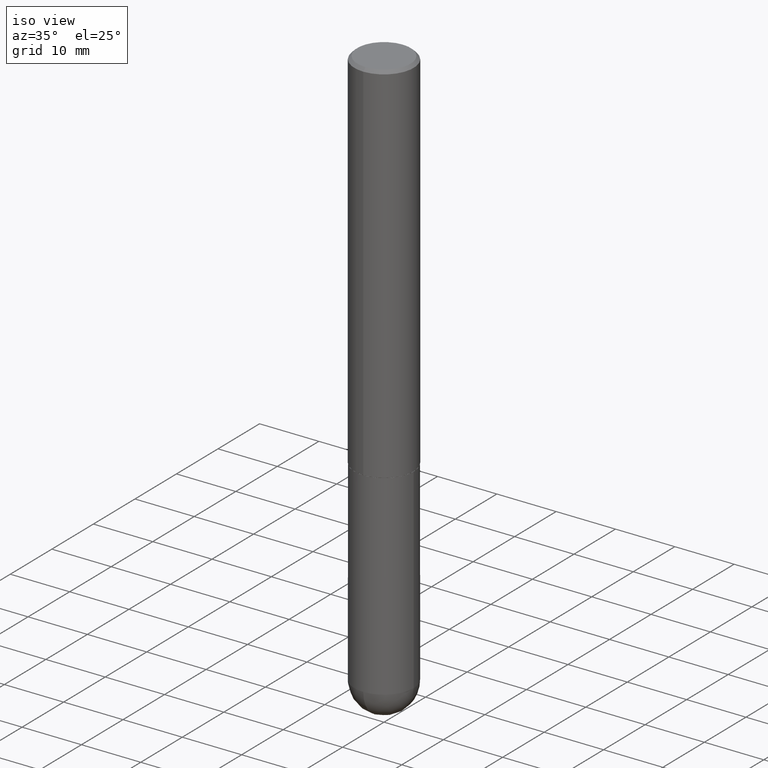
[diagram: clean part render]
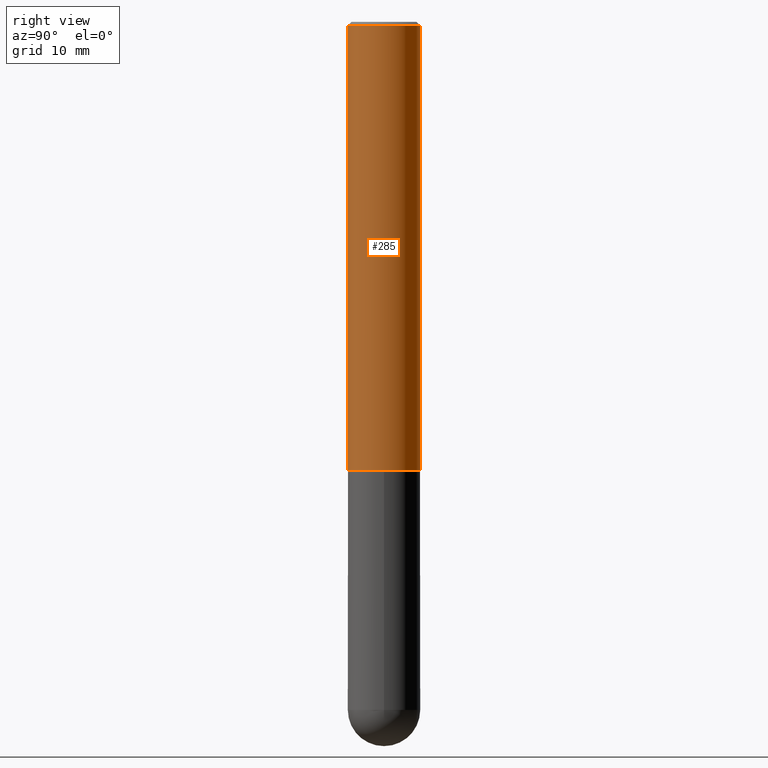
[diagram: tour spotlight — one face highlighted and labeled with its STEP entity id]
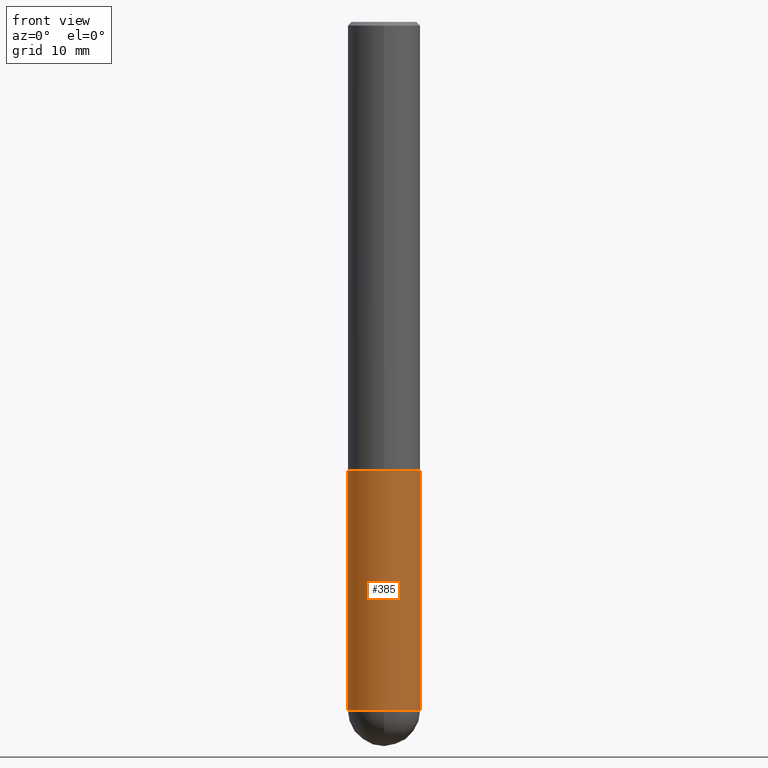
[diagram: tour spotlight — one face highlighted and labeled with its STEP entity id]
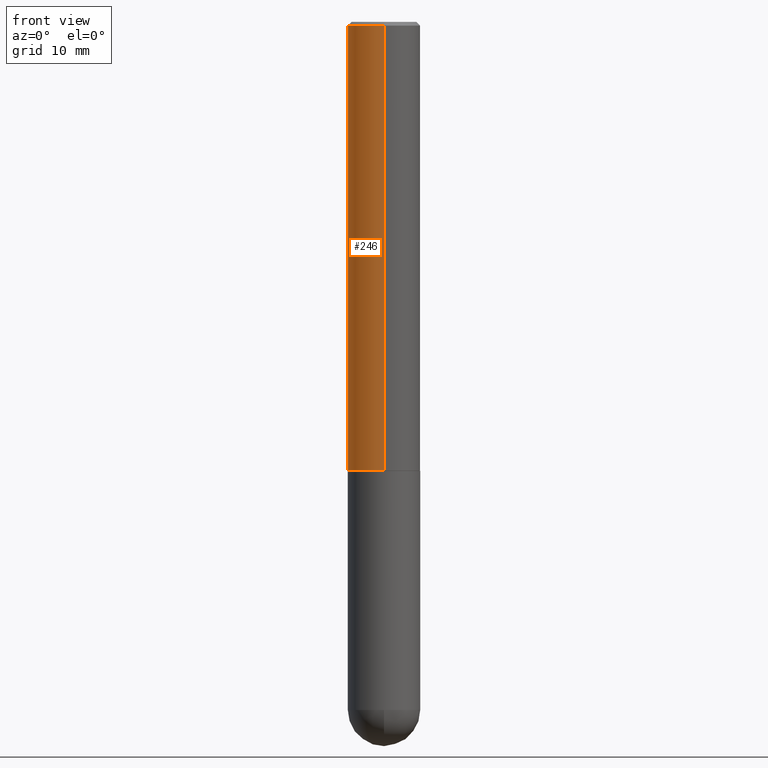
[diagram: tour spotlight — one face highlighted and labeled with its STEP entity id]
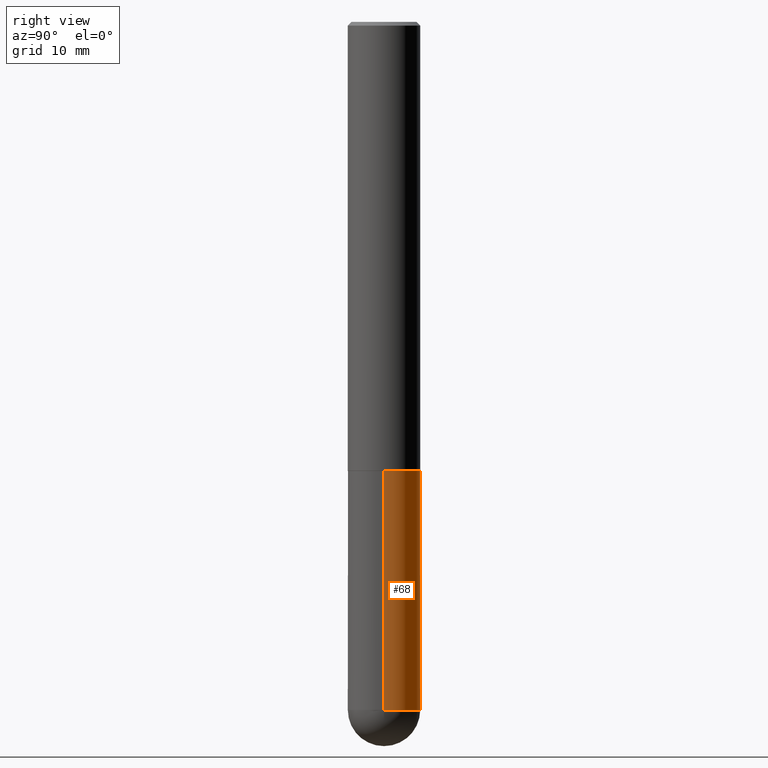
[diagram: tour spotlight — one face highlighted and labeled with its STEP entity id]
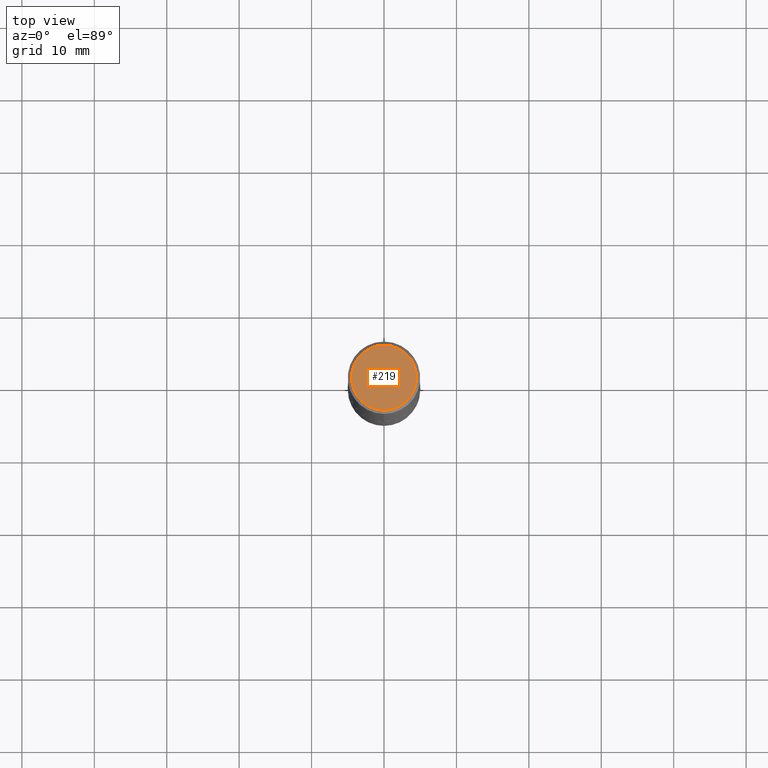
[diagram: tour spotlight — one face highlighted and labeled with its STEP entity id]
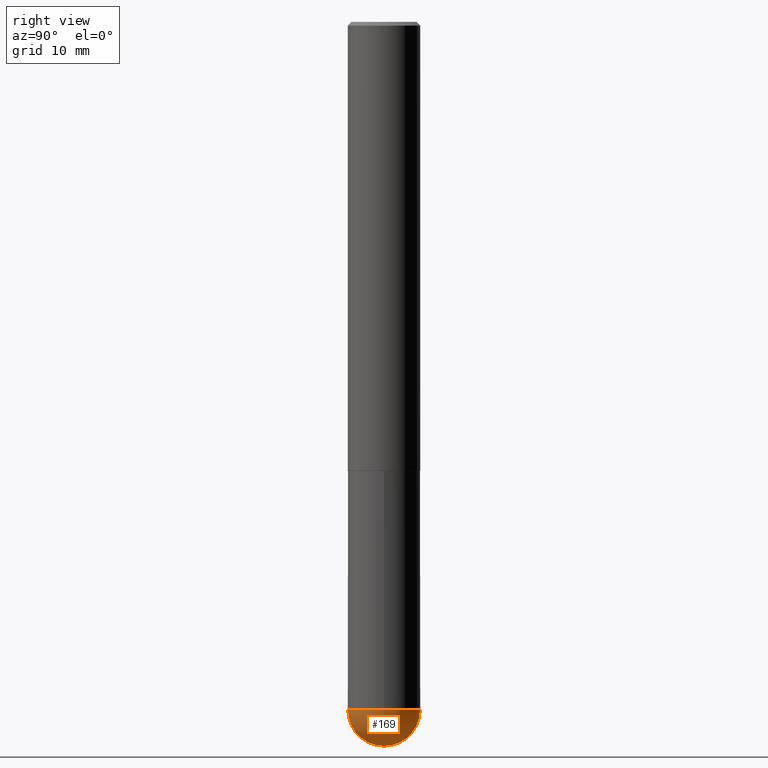
[diagram: tour spotlight — one face highlighted and labeled with its STEP entity id]
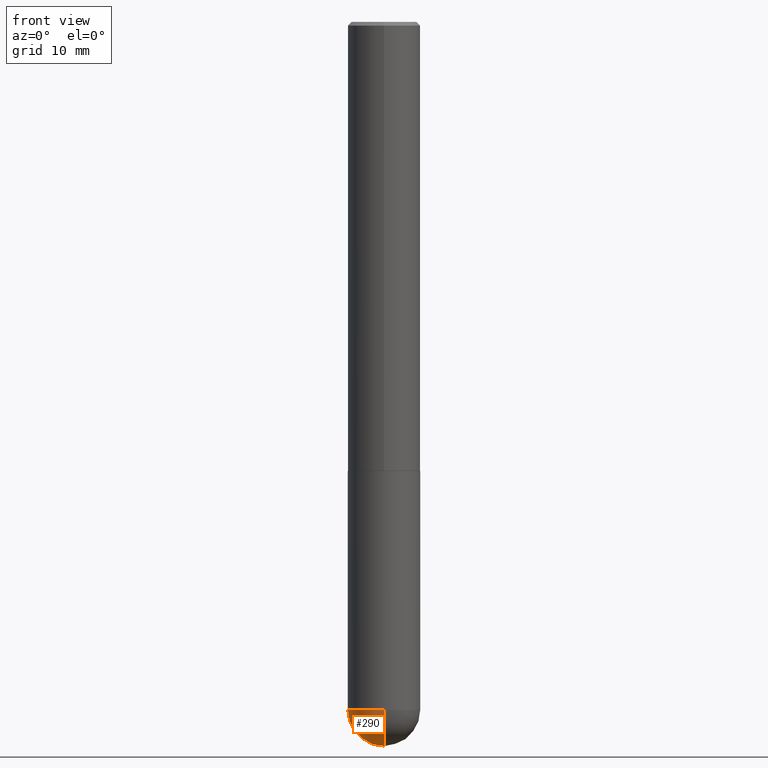
[diagram: tour spotlight — one face highlighted and labeled with its STEP entity id]
A machine part: a face-by-face anatomy tour. The part has 13 B-rep faces; the first image is the clean iso view, then the 7 largest visible faces are spotlighted one at a time (largest first), each with its STEP entity span.

Face 1 — right view, entity #285. In plain terms, the highlighted cylindrical surface (edge-blend (fillet) strip) has radius 5 mm, axis along (-0, 0, 1).
Definition (entity closure, byte-faithful):
#1 = AXIS2_PLACEMENT_3D ( 'NONE', #242, #405, #209 ) ;
#17 = CYLINDRICAL_SURFACE ( 'NONE', #1, 0.1968500000000001915 ) ;
#20 = FACE_OUTER_BOUND ( 'NONE', #273, .T. ) ;
#29 = VERTEX_POINT ( 'NONE', #33 ) ;
#33 = CARTESIAN_POINT ( 'NONE',  ( -1.374596203102484021E-15, -0.1968500000000088512, -2.439899999999998847 ) ) ;
#35 = CARTESIAN_POINT ( 'NONE',  ( 5.964287302634537555E-29, -8.522319493737701952E-15, -2.439899999999999736 ) ) ;
#36 = AXIS2_PLACEMENT_3D ( 'NONE', #336, #55, #211 ) ;
#41 = CARTESIAN_POINT ( 'NONE',  ( -1.374596203102542594E-15, -0.1968500000000001915, 6.875767827953065398E-16 ) ) ;
#43 = LINE ( 'NONE', #323, #52 ) ;
#52 = VECTOR ( 'NONE', #137, 39.37007874015748143 ) ;
#55 = DIRECTION ( 'NONE',  ( -2.444480225679141495E-29, 3.492897042394238758E-15, 1.000000000000000000 ) ) ;
#70 = VECTOR ( 'NONE', #163, 39.37007874015748143 ) ;
#75 = EDGE_CURVE ( 'NONE', #29, #339, #124, .T. ) ;
#120 = ORIENTED_EDGE ( 'NONE', *, *, #75, .T. ) ;
#124 = CIRCLE ( 'NONE', #271, 0.1968500000000003303 ) ;
#134 = CARTESIAN_POINT ( 'NONE',  ( 1.398703375343789145E-15, 0.1968499999999918093, -2.439900000000000624 ) ) ;
#137 = DIRECTION ( 'NONE',  ( -2.444480225679141495E-29, 3.492897042394238758E-15, 1.000000000000000000 ) ) ;
#157 = DIRECTION ( 'NONE',  ( -6.982962677686265133E-15, -1.000000000000000000, 4.163344669033668535E-15 ) ) ;
#161 = CARTESIAN_POINT ( 'NONE',  ( 1.374596203102542200E-15, 0.1968499999999999694, -0.02000000000000072900 ) ) ;
#163 = DIRECTION ( 'NONE',  ( -2.444480225679141495E-29, 3.492897042394238758E-15, 1.000000000000000000 ) ) ;
#193 = EDGE_CURVE ( 'NONE', #339, #240, #43, .T. ) ;
#209 = DIRECTION ( 'NONE',  ( -6.982962677686265133E-15, -1.000000000000000000, 3.492897042394238758E-15 ) ) ;
#210 = CIRCLE ( 'NONE', #36, 0.1968500000000000527 ) ;
#211 = DIRECTION ( 'NONE',  ( -6.982962677686265133E-15, -1.000000000000000000, 3.491137977679279029E-15 ) ) ;
#240 = VERTEX_POINT ( 'NONE', #161 ) ;
#242 = CARTESIAN_POINT ( 'NONE',  ( 0.000000000000000000, 0.000000000000000000, 0.000000000000000000 ) ) ;
#271 = AXIS2_PLACEMENT_3D ( 'NONE', #35, #381, #157 ) ;
#273 = EDGE_LOOP ( 'NONE', ( #120, #332, #301, #310 ) ) ;
#285 = ADVANCED_FACE ( 'NONE', ( #20 ), #17, .T. ) ;
#301 = ORIENTED_EDGE ( 'NONE', *, *, #370, .F. ) ;
#307 = VERTEX_POINT ( 'NONE', #350 ) ;
#310 = ORIENTED_EDGE ( 'NONE', *, *, #361, .F. ) ;
#321 = LINE ( 'NONE', #41, #70 ) ;
#323 = CARTESIAN_POINT ( 'NONE',  ( 1.398703375343758182E-15, 0.1968500000000001915, -6.875767827953065398E-16 ) ) ;
#332 = ORIENTED_EDGE ( 'NONE', *, *, #193, .T. ) ;
#336 = CARTESIAN_POINT ( 'NONE',  ( 4.888960451358293429E-31, -6.985794084788491174E-17, -0.02000000000000004205 ) ) ;
#339 = VERTEX_POINT ( 'NONE', #134 ) ;
#350 = CARTESIAN_POINT ( 'NONE',  ( -1.350489030861325626E-15, -0.1968500000000001082, -0.01999999999999935510 ) ) ;
#361 = EDGE_CURVE ( 'NONE', #29, #307, #321, .T. ) ;
#370 = EDGE_CURVE ( 'NONE', #307, #240, #210, .T. ) ;
#381 = DIRECTION ( 'NONE',  ( -2.444480225679141495E-29, 3.492897042394238758E-15, 1.000000000000000000 ) ) ;
#405 = DIRECTION ( 'NONE',  ( -2.444480225679141495E-29, 3.492897042394238758E-15, 1.000000000000000000 ) ) ;

Face 2 — front view, entity #385. In plain terms, the highlighted cylindrical surface (edge-blend (fillet) strip) has radius 5 mm, axis along (-0, 0, 1).
Definition (entity closure, byte-faithful):
#5 = DIRECTION ( 'NONE',  ( -2.445468806185136597E-29, 3.491481338843145583E-15, 1.000000000000000000 ) ) ;
#15 = DIRECTION ( 'NONE',  ( 1.000000000000000000, -6.982962677686262766E-15, 0.000000000000000000 ) ) ;
#18 = VERTEX_POINT ( 'NONE', #188 ) ;
#22 = AXIS2_PLACEMENT_3D ( 'NONE', #217, #349, #220 ) ;
#23 = CARTESIAN_POINT ( 'NONE',  ( -0.1968500000000000250, -9.391806989384456184E-15, -2.440900000000000070 ) ) ;
#28 = CARTESIAN_POINT ( 'NONE',  ( 0.000000000000000000, 0.000000000000000000, 0.000000000000000000 ) ) ;
#51 = EDGE_CURVE ( 'NONE', #341, #270, #127, .T. ) ;
#60 = LINE ( 'NONE', #340, #266 ) ;
#89 = ORIENTED_EDGE ( 'NONE', *, *, #228, .T. ) ;
#93 = DIRECTION ( 'NONE',  ( 1.000000000000000000, -6.982962677686266711E-15, 4.876176775795935793E-29 ) ) ;
#101 = EDGE_CURVE ( 'NONE', #205, #18, #153, .T. ) ;
#107 = CARTESIAN_POINT ( 'NONE',  ( -1.398703375343667858E-15, -0.1968500000000133754, -3.740150000000000308 ) ) ;
#117 = VERTEX_POINT ( 'NONE', #159 ) ;
#122 = FACE_OUTER_BOUND ( 'NONE', #238, .T. ) ;
#127 = LINE ( 'NONE', #129, #299 ) ;
#129 = CARTESIAN_POINT ( 'NONE',  ( -0.1968499999999999694, 1.398703375343756999E-15, -9.682923725166782276E-30 ) ) ;
#145 = EDGE_CURVE ( 'NONE', #270, #117, #408, .T. ) ;
#153 = CIRCLE ( 'NONE', #22, 0.1968499999999999694 ) ;
#159 = CARTESIAN_POINT ( 'NONE',  ( 0.1968500000000000250, -9.896953003084774574E-15, -2.440900000000000070 ) ) ;
#177 = AXIS2_PLACEMENT_3D ( 'NONE', #224, #363, #201 ) ;
#178 = ORIENTED_EDGE ( 'NONE', *, *, #145, .F. ) ;
#181 = DIRECTION ( 'NONE',  ( -2.445468806185136877E-29, 3.491481338843145188E-15, 1.000000000000000000 ) ) ;
#188 = CARTESIAN_POINT ( 'NONE',  ( 0.1968499999999999694, -1.216510656783075637E-14, -3.740150000000000752 ) ) ;
#201 = DIRECTION ( 'NONE',  ( 1.000000000000000000, -6.982962677686269866E-15, 0.000000000000000000 ) ) ;
#202 = CIRCLE ( 'NONE', #177, 0.1968499999999999694 ) ;
#204 = ORIENTED_EDGE ( 'NONE', *, *, #101, .T. ) ;
#205 = VERTEX_POINT ( 'NONE', #107 ) ;
#216 = ORIENTED_EDGE ( 'NONE', *, *, #51, .F. ) ;
#217 = CARTESIAN_POINT ( 'NONE',  ( 9.146420155453340551E-29, -1.305866392947419340E-14, -3.740150000000000752 ) ) ;
#220 = DIRECTION ( 'NONE',  ( 1.000000000000000000, -6.982962677686269866E-15, 0.000000000000000000 ) ) ;
#224 = CARTESIAN_POINT ( 'NONE',  ( 9.146420155453340551E-29, -1.305866392947419340E-14, -3.740150000000000752 ) ) ;
#228 = EDGE_CURVE ( 'NONE', #341, #205, #202, .T. ) ;
#238 = EDGE_LOOP ( 'NONE', ( #216, #89, #204, #316, #178 ) ) ;
#250 = DIRECTION ( 'NONE',  ( -2.445468806185136877E-29, 3.491481338843145188E-15, 1.000000000000000000 ) ) ;
#256 = CARTESIAN_POINT ( 'NONE',  ( -0.1968499999999999694, -9.391806989384456184E-15, -3.740150000000000752 ) ) ;
#266 = VECTOR ( 'NONE', #181, 39.37007874015748143 ) ;
#270 = VERTEX_POINT ( 'NONE', #23 ) ;
#275 = DIRECTION ( 'NONE',  ( -2.445468806185136597E-29, 3.491481338843145583E-15, 1.000000000000000000 ) ) ;
#297 = CARTESIAN_POINT ( 'NONE',  ( 5.969144809017299038E-29, -8.522356799982232966E-15, -2.440900000000000070 ) ) ;
#299 = VECTOR ( 'NONE', #250, 39.37007874015748143 ) ;
#309 = CYLINDRICAL_SURFACE ( 'NONE', #318, 0.1968499999999999694 ) ;
#316 = ORIENTED_EDGE ( 'NONE', *, *, #377, .T. ) ;
#318 = AXIS2_PLACEMENT_3D ( 'NONE', #28, #275, #93 ) ;
#340 = CARTESIAN_POINT ( 'NONE',  ( 0.1968499999999999694, -1.374596203102541411E-15, 9.598753983154298056E-30 ) ) ;
#341 = VERTEX_POINT ( 'NONE', #256 ) ;
#349 = DIRECTION ( 'NONE',  ( -2.445468806185136597E-29, 3.491481338843145583E-15, 1.000000000000000000 ) ) ;
#358 = AXIS2_PLACEMENT_3D ( 'NONE', #297, #5, #15 ) ;
#363 = DIRECTION ( 'NONE',  ( -2.445468806185136597E-29, 3.491481338843145583E-15, 1.000000000000000000 ) ) ;
#377 = EDGE_CURVE ( 'NONE', #18, #117, #60, .T. ) ;
#385 = ADVANCED_FACE ( 'NONE', ( #122 ), #309, .T. ) ;
#408 = CIRCLE ( 'NONE', #358, 0.1968500000000000250 ) ;

Face 3 — front view, entity #246. In plain terms, the highlighted cylindrical surface (edge-blend (fillet) strip) has radius 5 mm, axis along (-0, 0, 1).
Definition (entity closure, byte-faithful):
#9 = DIRECTION ( 'NONE',  ( -2.444480225679141495E-29, 3.492897042394238758E-15, 1.000000000000000000 ) ) ;
#29 = VERTEX_POINT ( 'NONE', #33 ) ;
#31 = EDGE_CURVE ( 'NONE', #339, #29, #198, .T. ) ;
#33 = CARTESIAN_POINT ( 'NONE',  ( -1.374596203102484021E-15, -0.1968500000000088512, -2.439899999999998847 ) ) ;
#41 = CARTESIAN_POINT ( 'NONE',  ( -1.374596203102542594E-15, -0.1968500000000001915, 6.875767827953065398E-16 ) ) ;
#43 = LINE ( 'NONE', #323, #52 ) ;
#46 = CIRCLE ( 'NONE', #312, 0.1968500000000000527 ) ;
#52 = VECTOR ( 'NONE', #137, 39.37007874015748143 ) ;
#56 = ORIENTED_EDGE ( 'NONE', *, *, #31, .T. ) ;
#67 = DIRECTION ( 'NONE',  ( -2.444480225679141495E-29, 3.492897042394238758E-15, 1.000000000000000000 ) ) ;
#70 = VECTOR ( 'NONE', #163, 39.37007874015748143 ) ;
#90 = EDGE_LOOP ( 'NONE', ( #236, #56, #150, #411 ) ) ;
#110 = DIRECTION ( 'NONE',  ( -2.444480225679141495E-29, 3.492897042394238758E-15, 1.000000000000000000 ) ) ;
#134 = CARTESIAN_POINT ( 'NONE',  ( 1.398703375343789145E-15, 0.1968499999999918093, -2.439900000000000624 ) ) ;
#137 = DIRECTION ( 'NONE',  ( -2.444480225679141495E-29, 3.492897042394238758E-15, 1.000000000000000000 ) ) ;
#150 = ORIENTED_EDGE ( 'NONE', *, *, #361, .T. ) ;
#155 = EDGE_CURVE ( 'NONE', #240, #307, #46, .T. ) ;
#161 = CARTESIAN_POINT ( 'NONE',  ( 1.374596203102542200E-15, 0.1968499999999999694, -0.02000000000000072900 ) ) ;
#163 = DIRECTION ( 'NONE',  ( -2.444480225679141495E-29, 3.492897042394238758E-15, 1.000000000000000000 ) ) ;
#190 = CARTESIAN_POINT ( 'NONE',  ( 5.964287302634537555E-29, -8.522319493737701952E-15, -2.439899999999999736 ) ) ;
#192 = DIRECTION ( 'NONE',  ( -6.982962677686265133E-15, -1.000000000000000000, 4.163344669033668535E-15 ) ) ;
#193 = EDGE_CURVE ( 'NONE', #339, #240, #43, .T. ) ;
#198 = CIRCLE ( 'NONE', #221, 0.1968500000000003303 ) ;
#221 = AXIS2_PLACEMENT_3D ( 'NONE', #190, #67, #192 ) ;
#227 = DIRECTION ( 'NONE',  ( -6.982962677686265133E-15, -1.000000000000000000, 3.492897042394238758E-15 ) ) ;
#233 = CARTESIAN_POINT ( 'NONE',  ( 4.888960451358293429E-31, -6.985794084788491174E-17, -0.02000000000000004205 ) ) ;
#236 = ORIENTED_EDGE ( 'NONE', *, *, #193, .F. ) ;
#240 = VERTEX_POINT ( 'NONE', #161 ) ;
#243 = AXIS2_PLACEMENT_3D ( 'NONE', #292, #9, #227 ) ;
#246 = ADVANCED_FACE ( 'NONE', ( #289 ), #391, .T. ) ;
#289 = FACE_OUTER_BOUND ( 'NONE', #90, .T. ) ;
#292 = CARTESIAN_POINT ( 'NONE',  ( 0.000000000000000000, 0.000000000000000000, 0.000000000000000000 ) ) ;
#307 = VERTEX_POINT ( 'NONE', #350 ) ;
#312 = AXIS2_PLACEMENT_3D ( 'NONE', #233, #110, #387 ) ;
#321 = LINE ( 'NONE', #41, #70 ) ;
#323 = CARTESIAN_POINT ( 'NONE',  ( 1.398703375343758182E-15, 0.1968500000000001915, -6.875767827953065398E-16 ) ) ;
#339 = VERTEX_POINT ( 'NONE', #134 ) ;
#350 = CARTESIAN_POINT ( 'NONE',  ( -1.350489030861325626E-15, -0.1968500000000001082, -0.01999999999999935510 ) ) ;
#361 = EDGE_CURVE ( 'NONE', #29, #307, #321, .T. ) ;
#387 = DIRECTION ( 'NONE',  ( -6.982962677686265133E-15, -1.000000000000000000, 3.491137977679279029E-15 ) ) ;
#391 = CYLINDRICAL_SURFACE ( 'NONE', #243, 0.1968500000000001915 ) ;
#411 = ORIENTED_EDGE ( 'NONE', *, *, #155, .F. ) ;

Face 4 — right view, entity #68. In plain terms, the highlighted cylindrical surface (edge-blend (fillet) strip) has radius 5 mm, axis along (-0, 0, 1).
Definition (entity closure, byte-faithful):
#18 = VERTEX_POINT ( 'NONE', #188 ) ;
#21 = AXIS2_PLACEMENT_3D ( 'NONE', #348, #249, #282 ) ;
#23 = CARTESIAN_POINT ( 'NONE',  ( -0.1968500000000000250, -9.391806989384456184E-15, -2.440900000000000070 ) ) ;
#45 = CARTESIAN_POINT ( 'NONE',  ( 5.969144809017299038E-29, -8.522356799982232966E-15, -2.440900000000000070 ) ) ;
#51 = EDGE_CURVE ( 'NONE', #341, #270, #127, .T. ) ;
#60 = LINE ( 'NONE', #340, #266 ) ;
#68 = ADVANCED_FACE ( 'NONE', ( #156 ), #128, .T. ) ;
#83 = CARTESIAN_POINT ( 'NONE',  ( 9.146420155453340551E-29, -1.305866392947419340E-14, -3.740150000000000752 ) ) ;
#87 = ORIENTED_EDGE ( 'NONE', *, *, #208, .T. ) ;
#94 = ORIENTED_EDGE ( 'NONE', *, *, #268, .F. ) ;
#106 = AXIS2_PLACEMENT_3D ( 'NONE', #45, #264, #394 ) ;
#113 = DIRECTION ( 'NONE',  ( 1.000000000000000000, -6.982962677686269866E-15, 0.000000000000000000 ) ) ;
#117 = VERTEX_POINT ( 'NONE', #159 ) ;
#127 = LINE ( 'NONE', #129, #299 ) ;
#128 = CYLINDRICAL_SURFACE ( 'NONE', #21, 0.1968499999999999694 ) ;
#129 = CARTESIAN_POINT ( 'NONE',  ( -0.1968499999999999694, 1.398703375343756999E-15, -9.682923725166782276E-30 ) ) ;
#130 = CIRCLE ( 'NONE', #106, 0.1968500000000000250 ) ;
#138 = CARTESIAN_POINT ( 'NONE',  ( 9.146420155453340551E-29, -1.305866392947419340E-14, -3.740150000000000752 ) ) ;
#156 = FACE_OUTER_BOUND ( 'NONE', #252, .T. ) ;
#159 = CARTESIAN_POINT ( 'NONE',  ( 0.1968500000000000250, -9.896953003084774574E-15, -2.440900000000000070 ) ) ;
#179 = VERTEX_POINT ( 'NONE', #395 ) ;
#181 = DIRECTION ( 'NONE',  ( -2.445468806185136877E-29, 3.491481338843145188E-15, 1.000000000000000000 ) ) ;
#188 = CARTESIAN_POINT ( 'NONE',  ( 0.1968499999999999694, -1.216510656783075637E-14, -3.740150000000000752 ) ) ;
#199 = EDGE_CURVE ( 'NONE', #179, #341, #259, .T. ) ;
#208 = EDGE_CURVE ( 'NONE', #18, #179, #403, .T. ) ;
#249 = DIRECTION ( 'NONE',  ( -2.445468806185136597E-29, 3.491481338843145583E-15, 1.000000000000000000 ) ) ;
#250 = DIRECTION ( 'NONE',  ( -2.445468806185136877E-29, 3.491481338843145188E-15, 1.000000000000000000 ) ) ;
#252 = EDGE_LOOP ( 'NONE', ( #367, #274, #94, #335, #87 ) ) ;
#256 = CARTESIAN_POINT ( 'NONE',  ( -0.1968499999999999694, -9.391806989384456184E-15, -3.740150000000000752 ) ) ;
#259 = CIRCLE ( 'NONE', #278, 0.1968499999999999694 ) ;
#262 = DIRECTION ( 'NONE',  ( 1.000000000000000000, -6.982962677686269866E-15, 0.000000000000000000 ) ) ;
#264 = DIRECTION ( 'NONE',  ( -2.445468806185136597E-29, 3.491481338843145583E-15, 1.000000000000000000 ) ) ;
#266 = VECTOR ( 'NONE', #181, 39.37007874015748143 ) ;
#268 = EDGE_CURVE ( 'NONE', #117, #270, #130, .T. ) ;
#270 = VERTEX_POINT ( 'NONE', #23 ) ;
#274 = ORIENTED_EDGE ( 'NONE', *, *, #51, .T. ) ;
#278 = AXIS2_PLACEMENT_3D ( 'NONE', #83, #399, #262 ) ;
#282 = DIRECTION ( 'NONE',  ( 1.000000000000000000, -6.982962677686266711E-15, 4.876176775795935793E-29 ) ) ;
#299 = VECTOR ( 'NONE', #250, 39.37007874015748143 ) ;
#330 = DIRECTION ( 'NONE',  ( -2.445468806185136597E-29, 3.491481338843145583E-15, 1.000000000000000000 ) ) ;
#335 = ORIENTED_EDGE ( 'NONE', *, *, #377, .F. ) ;
#340 = CARTESIAN_POINT ( 'NONE',  ( 0.1968499999999999694, -1.374596203102541411E-15, 9.598753983154298056E-30 ) ) ;
#341 = VERTEX_POINT ( 'NONE', #256 ) ;
#348 = CARTESIAN_POINT ( 'NONE',  ( 0.000000000000000000, 0.000000000000000000, 0.000000000000000000 ) ) ;
#367 = ORIENTED_EDGE ( 'NONE', *, *, #199, .T. ) ;
#377 = EDGE_CURVE ( 'NONE', #18, #117, #60, .T. ) ;
#388 = AXIS2_PLACEMENT_3D ( 'NONE', #138, #330, #113 ) ;
#394 = DIRECTION ( 'NONE',  ( 1.000000000000000000, -6.982962677686262766E-15, 0.000000000000000000 ) ) ;
#395 = CARTESIAN_POINT ( 'NONE',  ( 1.374596203102631736E-15, 0.1968499999999867855, -3.740150000000001196 ) ) ;
#399 = DIRECTION ( 'NONE',  ( -2.445468806185136597E-29, 3.491481338843145583E-15, 1.000000000000000000 ) ) ;
#403 = CIRCLE ( 'NONE', #388, 0.1968499999999999694 ) ;

Face 5 — top view, entity #219. In plain terms, the highlighted planar face has unit normal (0, -0, -1).
Definition (entity closure, byte-faithful):
#2 = CARTESIAN_POINT ( 'NONE',  ( 2.498110473991731681E-45, -3.569528848921481712E-31, -1.021939325893990642E-16 ) ) ;
#3 = DIRECTION ( 'NONE',  ( -2.444480225679141495E-29, 3.492897042394238758E-15, 1.000000000000000000 ) ) ;
#34 = DIRECTION ( 'NONE',  ( -2.444480225679141495E-29, 3.492897042394238758E-15, 1.000000000000000000 ) ) ;
#49 = FACE_OUTER_BOUND ( 'NONE', #189, .T. ) ;
#63 = ORIENTED_EDGE ( 'NONE', *, *, #118, .T. ) ;
#64 = CIRCLE ( 'NONE', #251, 0.1768500000000001182 ) ;
#69 = ORIENTED_EDGE ( 'NONE', *, *, #95, .T. ) ;
#74 = DIRECTION ( 'NONE',  ( 2.444480225679141214E-29, -3.492897042394238758E-15, -1.000000000000000000 ) ) ;
#95 = EDGE_CURVE ( 'NONE', #345, #269, #396, .T. ) ;
#102 = DIRECTION ( 'NONE',  ( -6.982962677686265922E-15, -1.000000000000000000, 3.492897042394239153E-15 ) ) ;
#116 = PLANE ( 'NONE',  #378 ) ;
#118 = EDGE_CURVE ( 'NONE', #269, #345, #64, .T. ) ;
#132 = DIRECTION ( 'NONE',  ( -6.982962677686265922E-15, -1.000000000000000000, 3.492897042394239153E-15 ) ) ;
#147 = AXIS2_PLACEMENT_3D ( 'NONE', #2, #34, #102 ) ;
#171 = CARTESIAN_POINT ( 'NONE',  ( 1.234936949548816984E-15, 0.1768500000000001182, -6.688158082421210493E-16 ) ) ;
#174 = CARTESIAN_POINT ( 'NONE',  ( -1.281884050883610886E-15, -0.1768500000000001182, 5.155249093580226748E-16 ) ) ;
#189 = EDGE_LOOP ( 'NONE', ( #69, #63 ) ) ;
#194 = CARTESIAN_POINT ( 'NONE',  ( 1.304766576325679493E-15, 0.1768500000000001182, -7.199127745368207046E-16 ) ) ;
#219 = ADVANCED_FACE ( 'NONE', ( #49 ), #116, .F. ) ;
#234 = DIRECTION ( 'NONE',  ( 6.982962677686265922E-15, 1.000000000000000000, -3.492897042394238758E-15 ) ) ;
#251 = AXIS2_PLACEMENT_3D ( 'NONE', #288, #3, #132 ) ;
#269 = VERTEX_POINT ( 'NONE', #174 ) ;
#288 = CARTESIAN_POINT ( 'NONE',  ( 2.498110473991731681E-45, -3.569528848921481712E-31, -1.021939325893990642E-16 ) ) ;
#345 = VERTEX_POINT ( 'NONE', #194 ) ;
#378 = AXIS2_PLACEMENT_3D ( 'NONE', #171, #74, #234 ) ;
#396 = CIRCLE ( 'NONE', #147, 0.1768500000000001182 ) ;

Face 6 — right view, entity #169. In plain terms, the highlighted spherical surface has radius 5 mm.
Definition (entity closure, byte-faithful):
#13 = CARTESIAN_POINT ( 'NONE',  ( 8.815300377539453183E-29, -1.353284629761424370E-14, -3.740150000000000308 ) ) ;
#18 = VERTEX_POINT ( 'NONE', #188 ) ;
#22 = AXIS2_PLACEMENT_3D ( 'NONE', #217, #349, #220 ) ;
#24 = EDGE_CURVE ( 'NONE', #255, #179, #284, .T. ) ;
#66 = CARTESIAN_POINT ( 'NONE',  ( 8.815300377539453183E-29, -1.353284629761424370E-14, -3.740150000000000308 ) ) ;
#78 = DIRECTION ( 'NONE',  ( -7.105427357601001070E-15, -1.000000000000000000, 0.000000000000000000 ) ) ;
#96 = ORIENTED_EDGE ( 'NONE', *, *, #101, .F. ) ;
#101 = EDGE_CURVE ( 'NONE', #205, #18, #153, .T. ) ;
#107 = CARTESIAN_POINT ( 'NONE',  ( -1.398703375343667858E-15, -0.1968500000000133754, -3.740150000000000308 ) ) ;
#112 = AXIS2_PLACEMENT_3D ( 'NONE', #66, #279, #313 ) ;
#113 = DIRECTION ( 'NONE',  ( 1.000000000000000000, -6.982962677686269866E-15, 0.000000000000000000 ) ) ;
#138 = CARTESIAN_POINT ( 'NONE',  ( 9.146420155453340551E-29, -1.305866392947419340E-14, -3.740150000000000752 ) ) ;
#153 = CIRCLE ( 'NONE', #22, 0.1968499999999999694 ) ;
#168 = DIRECTION ( 'NONE',  ( -1.000000000000000000, 6.982962677686265922E-15, -4.883557194083113462E-29 ) ) ;
#169 = ADVANCED_FACE ( 'NONE', ( #200 ), #294, .T. ) ;
#179 = VERTEX_POINT ( 'NONE', #395 ) ;
#188 = CARTESIAN_POINT ( 'NONE',  ( 0.1968499999999999694, -1.216510656783075637E-14, -3.740150000000000752 ) ) ;
#197 = CARTESIAN_POINT ( 'NONE',  ( 9.305107886238245984E-29, -1.420809081304490838E-14, -3.937000000000000721 ) ) ;
#200 = FACE_OUTER_BOUND ( 'NONE', #283, .T. ) ;
#205 = VERTEX_POINT ( 'NONE', #107 ) ;
#208 = EDGE_CURVE ( 'NONE', #18, #179, #403, .T. ) ;
#213 = ORIENTED_EDGE ( 'NONE', *, *, #208, .F. ) ;
#217 = CARTESIAN_POINT ( 'NONE',  ( 9.146420155453340551E-29, -1.305866392947419340E-14, -3.740150000000000752 ) ) ;
#220 = DIRECTION ( 'NONE',  ( 1.000000000000000000, -6.982962677686269866E-15, 0.000000000000000000 ) ) ;
#222 = AXIS2_PLACEMENT_3D ( 'NONE', #13, #168, #267 ) ;
#230 = AXIS2_PLACEMENT_3D ( 'NONE', #325, #355, #78 ) ;
#244 = ORIENTED_EDGE ( 'NONE', *, *, #253, .F. ) ;
#253 = EDGE_CURVE ( 'NONE', #255, #205, #286, .T. ) ;
#255 = VERTEX_POINT ( 'NONE', #197 ) ;
#267 = DIRECTION ( 'NONE',  ( 6.982962677686265922E-15, 1.000000000000000000, -2.775563112689114723E-15 ) ) ;
#279 = DIRECTION ( 'NONE',  ( 1.000000000000000000, -6.982962677686265922E-15, 4.883557194083112340E-29 ) ) ;
#283 = EDGE_LOOP ( 'NONE', ( #244, #368, #213, #96 ) ) ;
#284 = CIRCLE ( 'NONE', #112, 0.1968500000000001360 ) ;
#286 = CIRCLE ( 'NONE', #230, 0.1968500000000001360 ) ;
#294 = SPHERICAL_SURFACE ( 'NONE', #222, 0.1968500000000001360 ) ;
#313 = DIRECTION ( 'NONE',  ( 6.982962677686265922E-15, 1.000000000000000000, 0.000000000000000000 ) ) ;
#325 = CARTESIAN_POINT ( 'NONE',  ( 8.815300377539453183E-29, -1.353284629761424370E-14, -3.740150000000000308 ) ) ;
#330 = DIRECTION ( 'NONE',  ( -2.445468806185136597E-29, 3.491481338843145583E-15, 1.000000000000000000 ) ) ;
#349 = DIRECTION ( 'NONE',  ( -2.445468806185136597E-29, 3.491481338843145583E-15, 1.000000000000000000 ) ) ;
#355 = DIRECTION ( 'NONE',  ( -1.000000000000000000, 7.105427357601001070E-15, -4.926315508542082329E-29 ) ) ;
#368 = ORIENTED_EDGE ( 'NONE', *, *, #24, .T. ) ;
#388 = AXIS2_PLACEMENT_3D ( 'NONE', #138, #330, #113 ) ;
#395 = CARTESIAN_POINT ( 'NONE',  ( 1.374596203102631736E-15, 0.1968499999999867855, -3.740150000000001196 ) ) ;
#403 = CIRCLE ( 'NONE', #388, 0.1968499999999999694 ) ;

Face 7 — front view, entity #290. In plain terms, the highlighted spherical surface has radius 5 mm.
Definition (entity closure, byte-faithful):
#4 = DIRECTION ( 'NONE',  ( -1.000000000000000000, 6.982962677686265922E-15, -4.883557194083113462E-29 ) ) ;
#10 = AXIS2_PLACEMENT_3D ( 'NONE', #39, #4, #392 ) ;
#24 = EDGE_CURVE ( 'NONE', #255, #179, #284, .T. ) ;
#39 = CARTESIAN_POINT ( 'NONE',  ( 8.815300377539453183E-29, -1.353284629761424370E-14, -3.740150000000000308 ) ) ;
#66 = CARTESIAN_POINT ( 'NONE',  ( 8.815300377539453183E-29, -1.353284629761424370E-14, -3.740150000000000308 ) ) ;
#78 = DIRECTION ( 'NONE',  ( -7.105427357601001070E-15, -1.000000000000000000, 0.000000000000000000 ) ) ;
#82 = SPHERICAL_SURFACE ( 'NONE', #10, 0.1968500000000001360 ) ;
#83 = CARTESIAN_POINT ( 'NONE',  ( 9.146420155453340551E-29, -1.305866392947419340E-14, -3.740150000000000752 ) ) ;
#107 = CARTESIAN_POINT ( 'NONE',  ( -1.398703375343667858E-15, -0.1968500000000133754, -3.740150000000000308 ) ) ;
#112 = AXIS2_PLACEMENT_3D ( 'NONE', #66, #279, #313 ) ;
#123 = ORIENTED_EDGE ( 'NONE', *, *, #228, .F. ) ;
#139 = FACE_OUTER_BOUND ( 'NONE', #185, .T. ) ;
#177 = AXIS2_PLACEMENT_3D ( 'NONE', #224, #363, #201 ) ;
#179 = VERTEX_POINT ( 'NONE', #395 ) ;
#185 = EDGE_LOOP ( 'NONE', ( #303, #247, #123, #276 ) ) ;
#197 = CARTESIAN_POINT ( 'NONE',  ( 9.305107886238245984E-29, -1.420809081304490838E-14, -3.937000000000000721 ) ) ;
#199 = EDGE_CURVE ( 'NONE', #179, #341, #259, .T. ) ;
#201 = DIRECTION ( 'NONE',  ( 1.000000000000000000, -6.982962677686269866E-15, 0.000000000000000000 ) ) ;
#202 = CIRCLE ( 'NONE', #177, 0.1968499999999999694 ) ;
#205 = VERTEX_POINT ( 'NONE', #107 ) ;
#224 = CARTESIAN_POINT ( 'NONE',  ( 9.146420155453340551E-29, -1.305866392947419340E-14, -3.740150000000000752 ) ) ;
#228 = EDGE_CURVE ( 'NONE', #341, #205, #202, .T. ) ;
#230 = AXIS2_PLACEMENT_3D ( 'NONE', #325, #355, #78 ) ;
#247 = ORIENTED_EDGE ( 'NONE', *, *, #253, .T. ) ;
#253 = EDGE_CURVE ( 'NONE', #255, #205, #286, .T. ) ;
#255 = VERTEX_POINT ( 'NONE', #197 ) ;
#256 = CARTESIAN_POINT ( 'NONE',  ( -0.1968499999999999694, -9.391806989384456184E-15, -3.740150000000000752 ) ) ;
#259 = CIRCLE ( 'NONE', #278, 0.1968499999999999694 ) ;
#262 = DIRECTION ( 'NONE',  ( 1.000000000000000000, -6.982962677686269866E-15, 0.000000000000000000 ) ) ;
#276 = ORIENTED_EDGE ( 'NONE', *, *, #199, .F. ) ;
#278 = AXIS2_PLACEMENT_3D ( 'NONE', #83, #399, #262 ) ;
#279 = DIRECTION ( 'NONE',  ( 1.000000000000000000, -6.982962677686265922E-15, 4.883557194083112340E-29 ) ) ;
#284 = CIRCLE ( 'NONE', #112, 0.1968500000000001360 ) ;
#286 = CIRCLE ( 'NONE', #230, 0.1968500000000001360 ) ;
#290 = ADVANCED_FACE ( 'NONE', ( #139 ), #82, .T. ) ;
#303 = ORIENTED_EDGE ( 'NONE', *, *, #24, .F. ) ;
#313 = DIRECTION ( 'NONE',  ( 6.982962677686265922E-15, 1.000000000000000000, 0.000000000000000000 ) ) ;
#325 = CARTESIAN_POINT ( 'NONE',  ( 8.815300377539453183E-29, -1.353284629761424370E-14, -3.740150000000000308 ) ) ;
#341 = VERTEX_POINT ( 'NONE', #256 ) ;
#355 = DIRECTION ( 'NONE',  ( -1.000000000000000000, 7.105427357601001070E-15, -4.926315508542082329E-29 ) ) ;
#363 = DIRECTION ( 'NONE',  ( -2.445468806185136597E-29, 3.491481338843145583E-15, 1.000000000000000000 ) ) ;
#392 = DIRECTION ( 'NONE',  ( 6.982962677686265922E-15, 1.000000000000000000, -2.775563112689114723E-15 ) ) ;
#395 = CARTESIAN_POINT ( 'NONE',  ( 1.374596203102631736E-15, 0.1968499999999867855, -3.740150000000001196 ) ) ;
#399 = DIRECTION ( 'NONE',  ( -2.445468806185136597E-29, 3.491481338843145583E-15, 1.000000000000000000 ) ) ;